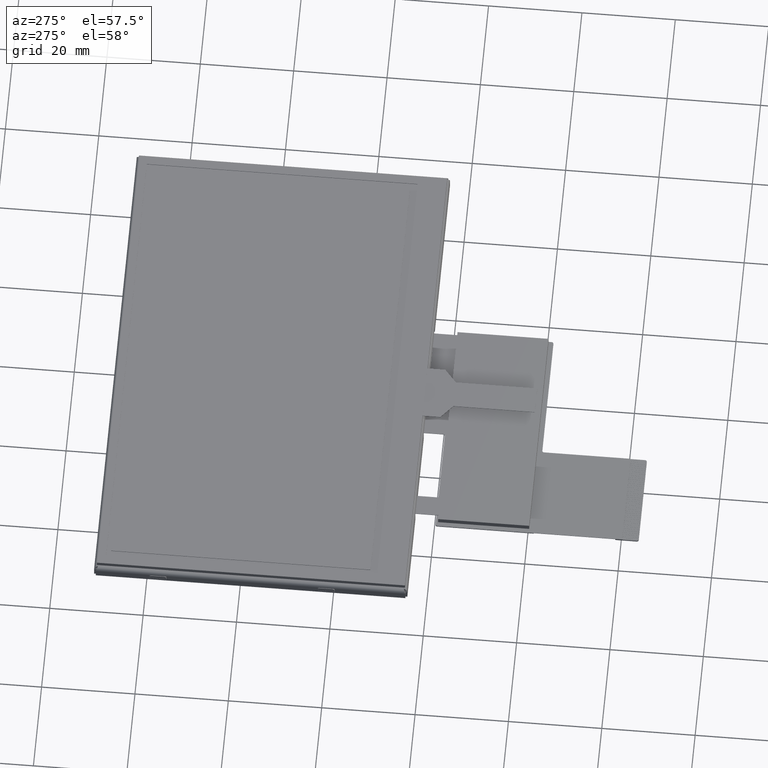
[diagram: clean part render]
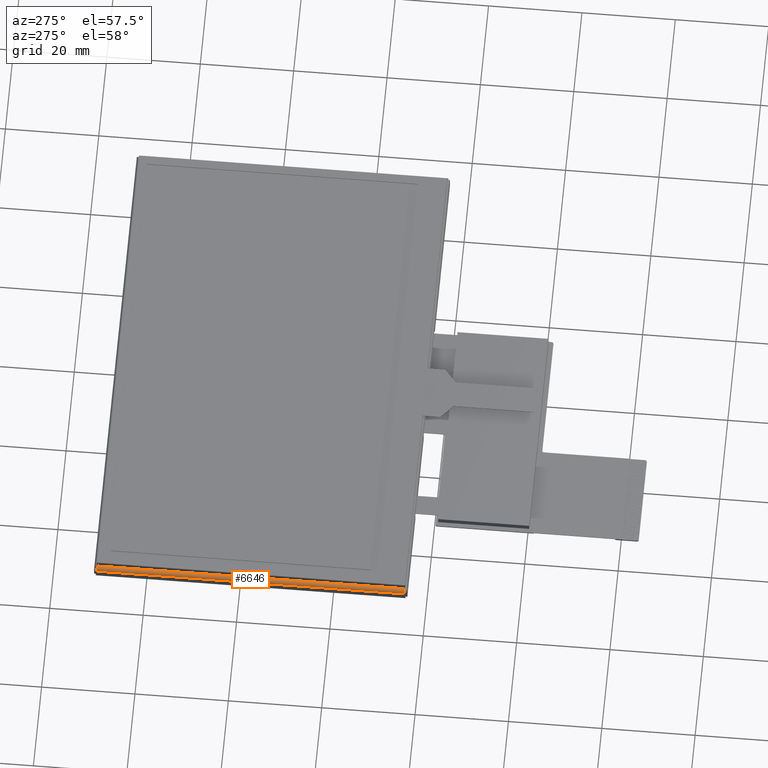
[diagram: same view with one face highlighted and labeled with its STEP entity id]
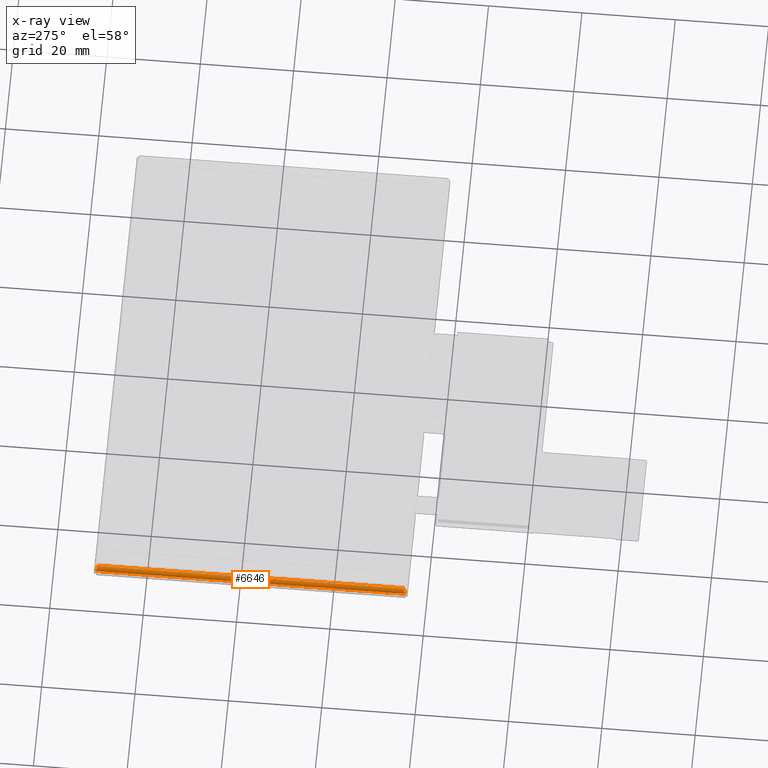
[diagram: x-ray of the same camera — body ghosted, the highlighted face saturated]
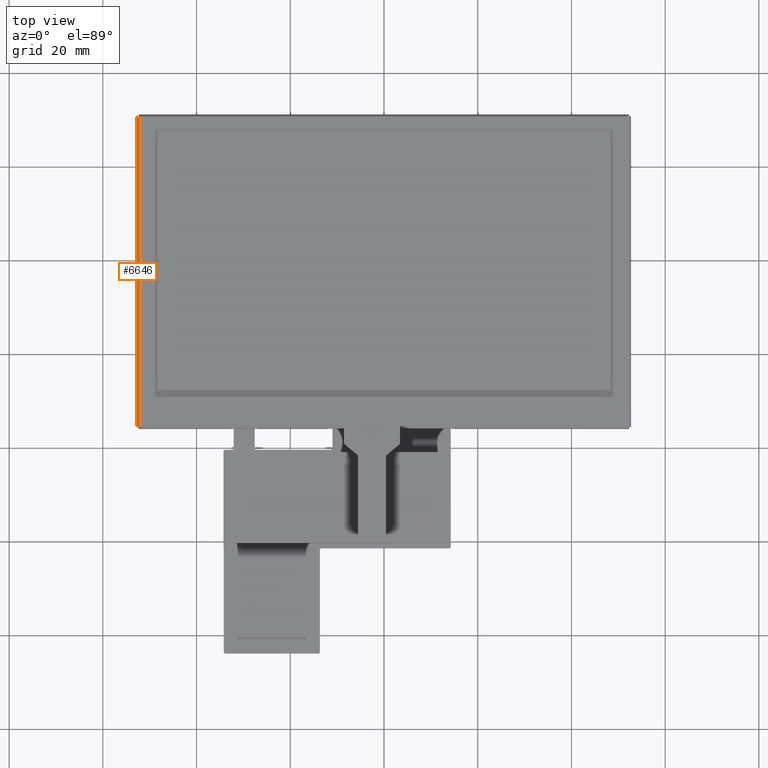
[diagram: same view with one face highlighted and labeled with its STEP entity id]
A machine part, auxiliary view. The second image highlights one B-rep face of the part: STEP entity #6646.
The next image is the same camera in x-ray: the body ghosted, the highlighted face saturated — about 0% of this face is hidden behind the body in this view.
A second angle (top view) of the same face is appended — the face is thin or edge-on in the first view.
In plain terms, the highlighted cylindrical surface (edge-blend (fillet) strip) has radius 0.8 mm, axis along (-0, -1, 0).
Its self-contained STEP definition (entity closure, byte-faithful):
#31=B_SPLINE_CURVE_WITH_KNOTS('',3,(#9718,#9719,#9720,#9721,#9722,#9723,
#9724,#9725,#9726,#9727,#9728,#9729,#9730,#9731,#9732,#9733,#9734,#9735,
#9736,#9737,#9738,#9739,#9740,#9741,#9742,#9743,#9744,#9745,#9746,#9747,
#9748,#9749,#9750,#9751,#9752,#9753,#9754,#9755,#9756,#9757,#9758,#9759,
#9760,#9761,#9762,#9763),.UNSPECIFIED.,.F.,.F.,(4,3,3,3,3,3,3,3,3,3,3,3,
3,3,3,4),(0.,0.0891618869260203,0.178329668151973,0.2,0.288887911207738,
0.37777837668181,0.4,0.488973966391083,0.57795110374159,0.6,0.688887234304236,
0.777778301584675,0.8,0.889164815797587,0.978329985088893,1.),
 .UNSPECIFIED.);
#45=B_SPLINE_CURVE_WITH_KNOTS('',3,(#10615,#10616,#10617,#10618,#10619,
#10620,#10621,#10622,#10623,#10624,#10625,#10626,#10627,#10628,#10629,#10630,
#10631,#10632,#10633,#10634,#10635,#10636,#10637,#10638,#10639,#10640,#10641,
#10642,#10643,#10644,#10645,#10646,#10647,#10648,#10649,#10650,#10651,#10652,
#10653,#10654,#10655,#10656,#10657,#10658,#10659,#10660),.UNSPECIFIED.,
 .F.,.F.,(4,3,3,3,3,3,3,3,3,3,3,3,3,3,3,4),(0.,0.0891618869260203,0.17832966815197,
0.2,0.288887911207738,0.37777837668181,0.4,0.488973966391083,0.577951103741596,
0.6,0.688887234304236,0.777778301584675,0.8,0.889164815797587,0.978329985088893,
1.),.UNSPECIFIED.);
#498=FACE_OUTER_BOUND('',#859,.T.);
#859=EDGE_LOOP('',(#5195,#5196,#5197,#5198));
#1225=LINE('',#9366,#2118);
#1399=LINE('',#10696,#2292);
#2118=VECTOR('',#7580,66.3);
#2292=VECTOR('',#7930,65.5);
#3051=VERTEX_POINT('',#9364);
#3052=VERTEX_POINT('',#9365);
#3152=VERTEX_POINT('',#9717);
#3171=VERTEX_POINT('',#10454);
#3725=EDGE_CURVE('',#3051,#3052,#1225,.T.);
#3879=EDGE_CURVE('',#3051,#3152,#31,.T.);
#3934=EDGE_CURVE('',#3052,#3171,#45,.T.);
#3938=EDGE_CURVE('',#3152,#3171,#1399,.T.);
#5195=ORIENTED_EDGE('',*,*,#3725,.T.);
#5196=ORIENTED_EDGE('',*,*,#3934,.T.);
#5197=ORIENTED_EDGE('',*,*,#3938,.F.);
#5198=ORIENTED_EDGE('',*,*,#3879,.F.);
#6506=CYLINDRICAL_SURFACE('',#7054,0.8);
#6646=ADVANCED_FACE('',(#498),#6506,.T.);
#7054=AXIS2_PLACEMENT_3D('',#10695,#7928,#7929);
#7580=DIRECTION('',(-2.16453909658425E-16,-1.,0.));
#7928=DIRECTION('center_axis',(-2.16453909658425E-16,-1.,0.));
#7929=DIRECTION('ref_axis',(0.,0.,1.));
#7930=DIRECTION('',(-2.16453909658425E-16,-1.,0.));
#9364=CARTESIAN_POINT('',(-52.7000000000002,30.7779999999998,-1.7));
#9365=CARTESIAN_POINT('',(-52.7000000000002,-35.5220000000001,-1.7));
#9366=CARTESIAN_POINT('',(-52.7000000000002,30.7779999999998,-1.7));
#9717=CARTESIAN_POINT('',(-51.9000000000003,30.3779999999999,-0.899999999999999));
#9718=CARTESIAN_POINT('Ctrl Pts',(-52.7000000000003,30.7779999999998,-1.7));
#9719=CARTESIAN_POINT('Ctrl Pts',(-52.7000000000003,30.7661117484081,-1.66265195614028));
#9720=CARTESIAN_POINT('Ctrl Pts',(-52.6973802683008,30.7542234968175,-1.62530300770496));
#9721=CARTESIAN_POINT('Ctrl Pts',(-52.6921663723026,30.7423352452274,-1.58831992750067));
#9722=CARTESIAN_POINT('Ctrl Pts',(-52.6869521316249,30.7304462077306,-1.55133440242475));
#9723=CARTESIAN_POINT('Ctrl Pts',(-52.6791434533931,30.7185571702342,-1.51471528769825));
#9724=CARTESIAN_POINT('Ctrl Pts',(-52.6688174953791,30.7066681327379,-1.47882211050972));
#9725=CARTESIAN_POINT('Ctrl Pts',(-52.6663079910073,30.7037787551582,-1.470099037556));
#9726=CARTESIAN_POINT('Ctrl Pts',(-52.6636500442351,30.7008893775786,-1.46141878730473));
#9727=CARTESIAN_POINT('Ctrl Pts',(-52.6608452130363,30.6979999999989,-1.45278640449977));
#9728=CARTESIAN_POINT('Ctrl Pts',(-52.64934028601,30.6861482785049,-1.41737787999447));
#9729=CARTESIAN_POINT('Ctrl Pts',(-52.6353585476373,30.6742965570108,-1.38277105781611));
#9730=CARTESIAN_POINT('Ctrl Pts',(-52.6190361817827,30.6624448355165,-1.3493050195858));
#9731=CARTESIAN_POINT('Ctrl Pts',(-52.6027133468917,30.6505927734534,-1.31583801968171));
#9732=CARTESIAN_POINT('Ctrl Pts',(-52.5840499707779,30.6387407113902,-1.28351232448029));
#9733=CARTESIAN_POINT('Ctrl Pts',(-52.5632290990797,30.626888649327,-1.25264425550315));
#9734=CARTESIAN_POINT('Ctrl Pts',(-52.558024113758,30.623925766218,-1.24492758310514));
#9735=CARTESIAN_POINT('Ctrl Pts',(-52.5526845160597,30.6209628831089,-1.23730187431241));
#9736=CARTESIAN_POINT('Ctrl Pts',(-52.5472135954996,30.6179999999998,-1.22977179816513));
#9737=CARTESIAN_POINT('Ctrl Pts',(-52.525308377547,30.606136804481,-1.19962185221124));
#9738=CARTESIAN_POINT('Ctrl Pts',(-52.5012914885159,30.5942736089621,-1.17100319614178));
#9739=CARTESIAN_POINT('Ctrl Pts',(-52.4753978162902,30.5824104134433,-1.14419665977178));
#9740=CARTESIAN_POINT('Ctrl Pts',(-52.4495032212352,30.5705467951299,-1.11738916803875));
#9741=CARTESIAN_POINT('Ctrl Pts',(-52.4217320585193,30.5586831768165,-1.09239428799462));
#9742=CARTESIAN_POINT('Ctrl Pts',(-52.3923567365608,30.5468195585031,-1.06945670730432));
#9743=CARTESIAN_POINT('Ctrl Pts',(-52.3850774123916,30.5438797056687,-1.06377268158581));
#9744=CARTESIAN_POINT('Ctrl Pts',(-52.3776997472474,30.5409398528342,-1.05821479999261));
#9745=CARTESIAN_POINT('Ctrl Pts',(-52.3702282018337,30.5379999999998,-1.05278640449961));
#9746=CARTESIAN_POINT('Ctrl Pts',(-52.3401076461367,30.5261483687592,-1.03090253981868));
#9747=CARTESIAN_POINT('Ctrl Pts',(-52.3084547320904,30.5142967375187,-1.01112329758999));
#9748=CARTESIAN_POINT('Ctrl Pts',(-52.2755790036227,30.5024451062782,-0.993642858011603));
#9749=CARTESIAN_POINT('Ctrl Pts',(-52.2427018574948,30.4905929639742,-0.97616166464546));
#9750=CARTESIAN_POINT('Ctrl Pts',(-52.2086022378372,30.4787408216703,-0.960979710353385));
#9751=CARTESIAN_POINT('Ctrl Pts',(-52.1736142084912,30.4668886793665,-0.948245209585014));
#9752=CARTESIAN_POINT('Ctrl Pts',(-52.1648676216849,30.4639257862445,-0.945061737452188));
#9753=CARTESIAN_POINT('Ctrl Pts',(-52.1560656153327,30.4609628931225,-0.942030982558877));
#9754=CARTESIAN_POINT('Ctrl Pts',(-52.1472135955002,30.4580000000006,-0.93915478696387));
#9755=CARTESIAN_POINT('Ctrl Pts',(-52.111694765974,30.4461113578946,-0.92761401966366));
#9756=CARTESIAN_POINT('Ctrl Pts',(-52.0753644947027,30.4342227157888,-0.918563951543016));
#9757=CARTESIAN_POINT('Ctrl Pts',(-52.0385793827429,30.4223340736827,-0.912094069905123));
#9758=CARTESIAN_POINT('Ctrl Pts',(-52.0017941249486,30.410445384444,-0.905624162617398));
#9759=CARTESIAN_POINT('Ctrl Pts',(-51.9645545136743,30.398556695205,-0.901734550042804));
#9760=CARTESIAN_POINT('Ctrl Pts',(-51.9272262659382,30.3866680059651,-0.900463427701348));
#9761=CARTESIAN_POINT('Ctrl Pts',(-51.9181542965642,30.3837786706434,-0.900154503933109));
#9762=CARTESIAN_POINT('Ctrl Pts',(-51.9090771146205,30.3808893353216,-0.899999999999999));
#9763=CARTESIAN_POINT('Ctrl Pts',(-51.9000000000003,30.3779999999998,-0.899999999999999));
#10454=CARTESIAN_POINT('',(-51.9000000000003,-35.1220000000002,-0.899999999999999));
#10615=CARTESIAN_POINT('Ctrl Pts',(-52.7000000000003,-35.5220000000002,
-1.7));
#10616=CARTESIAN_POINT('Ctrl Pts',(-52.7000000000003,-35.5101117484086,
-1.66265195614028));
#10617=CARTESIAN_POINT('Ctrl Pts',(-52.6973802683008,-35.498223496818,-1.62530300770496));
#10618=CARTESIAN_POINT('Ctrl Pts',(-52.6921663723026,-35.4863352452278,
-1.58831992750067));
#10619=CARTESIAN_POINT('Ctrl Pts',(-52.6869521316249,-35.474446207731,-1.55133440242475));
#10620=CARTESIAN_POINT('Ctrl Pts',(-52.6791434533931,-35.4625571702347,
-1.51471528769825));
#10621=CARTESIAN_POINT('Ctrl Pts',(-52.6688174953792,-35.4506681327383,
-1.47882211050973));
#10622=CARTESIAN_POINT('Ctrl Pts',(-52.6663079910074,-35.4477787551587,
-1.470099037556));
#10623=CARTESIAN_POINT('Ctrl Pts',(-52.6636500442351,-35.444889377579,-1.46141878730473));
#10624=CARTESIAN_POINT('Ctrl Pts',(-52.6608452130363,-35.4419999999994,
-1.45278640449977));
#10625=CARTESIAN_POINT('Ctrl Pts',(-52.64934028601,-35.4301482785054,-1.41737787999447));
#10626=CARTESIAN_POINT('Ctrl Pts',(-52.6353585476373,-35.4182965570112,
-1.38277105781611));
#10627=CARTESIAN_POINT('Ctrl Pts',(-52.6190361817827,-35.406444835517,-1.3493050195858));
#10628=CARTESIAN_POINT('Ctrl Pts',(-52.6027133468917,-35.3945927734539,
-1.31583801968171));
#10629=CARTESIAN_POINT('Ctrl Pts',(-52.5840499707779,-35.3827407113907,
-1.28351232448029));
#10630=CARTESIAN_POINT('Ctrl Pts',(-52.5632290990797,-35.3708886493275,
-1.25264425550315));
#10631=CARTESIAN_POINT('Ctrl Pts',(-52.558024113758,-35.3679257662184,-1.24492758310514));
#10632=CARTESIAN_POINT('Ctrl Pts',(-52.5526845160597,-35.3649628831093,
-1.23730187431241));
#10633=CARTESIAN_POINT('Ctrl Pts',(-52.5472135954996,-35.3620000000002,
-1.22977179816513));
#10634=CARTESIAN_POINT('Ctrl Pts',(-52.525308377547,-35.3501368044814,-1.19962185221124));
#10635=CARTESIAN_POINT('Ctrl Pts',(-52.5012914885159,-35.3382736089626,
-1.17100319614178));
#10636=CARTESIAN_POINT('Ctrl Pts',(-52.4753978162902,-35.3264104134438,
-1.14419665977178));
#10637=CARTESIAN_POINT('Ctrl Pts',(-52.4495032212352,-35.3145467951304,
-1.11738916803875));
#10638=CARTESIAN_POINT('Ctrl Pts',(-52.4217320585193,-35.302683176817,-1.09239428799462));
#10639=CARTESIAN_POINT('Ctrl Pts',(-52.3923567365608,-35.2908195585036,
-1.06945670730431));
#10640=CARTESIAN_POINT('Ctrl Pts',(-52.3850774123916,-35.2878797056691,
-1.06377268158581));
#10641=CARTESIAN_POINT('Ctrl Pts',(-52.3776997472474,-35.2849398528347,
-1.05821479999261));
#10642=CARTESIAN_POINT('Ctrl Pts',(-52.3702282018337,-35.2820000000002,
-1.05278640449961));
#10643=CARTESIAN_POINT('Ctrl Pts',(-52.3401076461368,-35.2701483687597,
-1.03090253981868));
#10644=CARTESIAN_POINT('Ctrl Pts',(-52.3084547320905,-35.2582967375191,
-1.01112329758999));
#10645=CARTESIAN_POINT('Ctrl Pts',(-52.2755790036227,-35.2464451062786,
-0.993642858011603));
#10646=CARTESIAN_POINT('Ctrl Pts',(-52.2427018574948,-35.2345929639746,
-0.97616166464546));
#10647=CARTESIAN_POINT('Ctrl Pts',(-52.2086022378372,-35.2227408216707,
-0.960979710353385));
#10648=CARTESIAN_POINT('Ctrl Pts',(-52.1736142084912,-35.2108886793669,
-0.948245209585014));
#10649=CARTESIAN_POINT('Ctrl Pts',(-52.1648676216849,-35.2079257862449,
-0.945061737452188));
#10650=CARTESIAN_POINT('Ctrl Pts',(-52.1560656153327,-35.204962893123,-0.942030982558877));
#10651=CARTESIAN_POINT('Ctrl Pts',(-52.1472135955002,-35.202000000001,-0.93915478696387));
#10652=CARTESIAN_POINT('Ctrl Pts',(-52.111694765974,-35.1901113578951,-0.92761401966366));
#10653=CARTESIAN_POINT('Ctrl Pts',(-52.0753644947027,-35.1782227157893,
-0.918563951543016));
#10654=CARTESIAN_POINT('Ctrl Pts',(-52.0385793827429,-35.1663340736831,
-0.912094069905123));
#10655=CARTESIAN_POINT('Ctrl Pts',(-52.0017941249486,-35.1544453844445,
-0.905624162617398));
#10656=CARTESIAN_POINT('Ctrl Pts',(-51.9645545136743,-35.1425566952055,
-0.901734550042804));
#10657=CARTESIAN_POINT('Ctrl Pts',(-51.9272262659383,-35.1306680059656,
-0.900463427701348));
#10658=CARTESIAN_POINT('Ctrl Pts',(-51.9181542965642,-35.1277786706439,
-0.900154503933109));
#10659=CARTESIAN_POINT('Ctrl Pts',(-51.9090771146205,-35.1248893353221,
-0.899999999999999));
#10660=CARTESIAN_POINT('Ctrl Pts',(-51.9000000000003,-35.1220000000002,
-0.899999999999999));
#10695=CARTESIAN_POINT('Origin',(-51.9000000000003,118.64956,-1.7));
#10696=CARTESIAN_POINT('',(-51.9000000000003,30.3779999999999,-0.899999999999999));